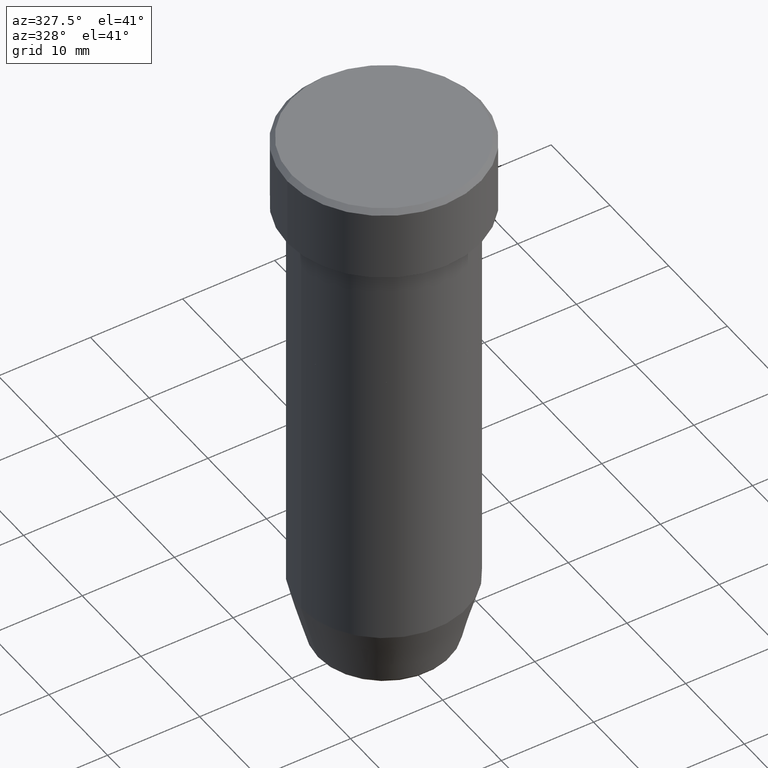
[diagram: clean part render]
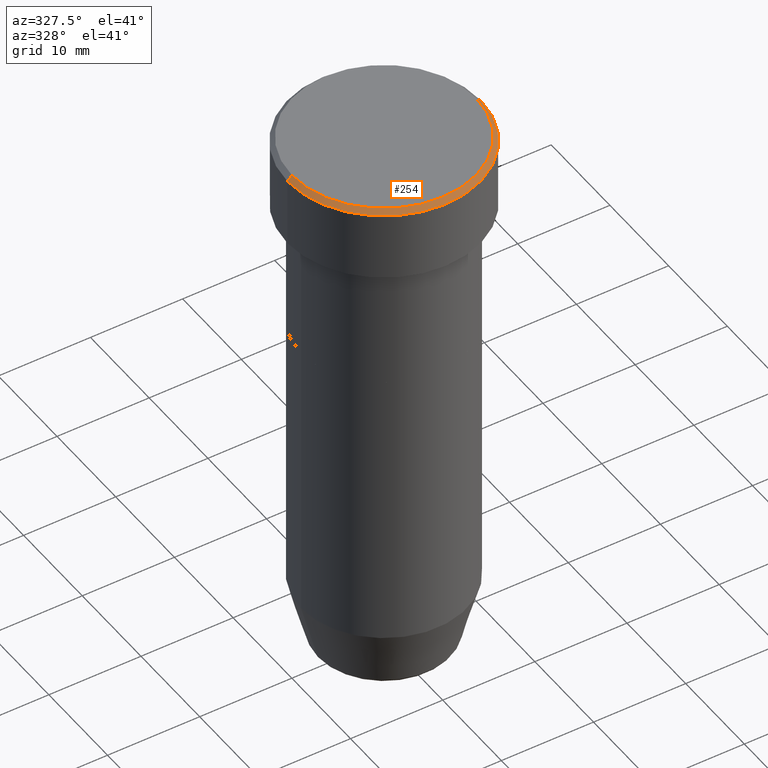
[diagram: same view with one face highlighted and labeled with its STEP entity id]
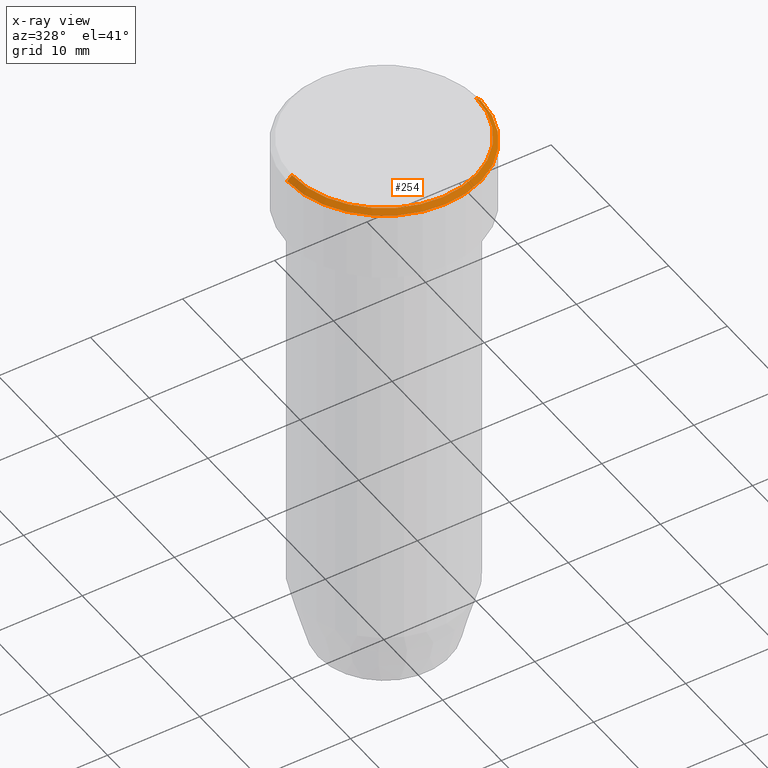
[diagram: x-ray of the same camera — body ghosted, the highlighted face saturated]
A machine part, auxiliary view. The second image highlights one B-rep face of the part: STEP entity #254.
The next image is the same camera in x-ray: the body ghosted, the highlighted face saturated — about 0% of this face is hidden behind the body in this view.
In plain terms, the highlighted conical surface has half-angle 45 deg.
Its self-contained STEP definition (entity closure, byte-faithful):
#8 = VECTOR ( 'NONE', #532, 1000.000000000000000 ) ;
#11 = CARTESIAN_POINT ( 'NONE',  ( -10.50000000000000000, 1.285879139104720831E-15, -0.5000000000000023315 ) ) ;
#50 = CARTESIAN_POINT ( 'NONE',  ( 0.000000000000000000, 0.000000000000000000, -0.5000000000000023315 ) ) ;
#52 = DIRECTION ( 'NONE',  ( 1.000000000000000000, 0.000000000000000000, 0.000000000000000000 ) ) ;
#68 = VECTOR ( 'NONE', #180, 1000.000000000000000 ) ;
#90 = DIRECTION ( 'NONE',  ( -1.000000000000000000, 0.000000000000000000, 0.000000000000000000 ) ) ;
#100 = LINE ( 'NONE', #475, #8 ) ;
#116 = ORIENTED_EDGE ( 'NONE', *, *, #588, .F. ) ;
#141 = DIRECTION ( 'NONE',  ( -0.000000000000000000, -0.000000000000000000, 1.000000000000000000 ) ) ;
#143 = VERTEX_POINT ( 'NONE', #316 ) ;
#145 = CARTESIAN_POINT ( 'NONE',  ( 0.000000000000000000, 0.000000000000000000, 0.000000000000000000 ) ) ;
#149 = AXIS2_PLACEMENT_3D ( 'NONE', #145, #141, #229 ) ;
#180 = DIRECTION ( 'NONE',  ( 0.7071067811865450192, 8.659560562354902043E-17, -0.7071067811865500152 ) ) ;
#187 = ORIENTED_EDGE ( 'NONE', *, *, #511, .F. ) ;
#196 = EDGE_LOOP ( 'NONE', ( #187, #513, #238, #116 ) ) ;
#206 = DIRECTION ( 'NONE',  ( 0.000000000000000000, 0.000000000000000000, -1.000000000000000000 ) ) ;
#220 = VERTEX_POINT ( 'NONE', #599 ) ;
#229 = DIRECTION ( 'NONE',  ( 1.000000000000000000, 0.000000000000000000, 0.000000000000000000 ) ) ;
#238 = ORIENTED_EDGE ( 'NONE', *, *, #542, .T. ) ;
#254 = ADVANCED_FACE ( 'NONE', ( #378 ), #427, .T. ) ;
#257 = AXIS2_PLACEMENT_3D ( 'NONE', #338, #512, #90 ) ;
#275 = VERTEX_POINT ( 'NONE', #472 ) ;
#316 = CARTESIAN_POINT ( 'NONE',  ( 10.50000000000000000, 0.000000000000000000, -0.5000000000000023315 ) ) ;
#317 = AXIS2_PLACEMENT_3D ( 'NONE', #50, #206, #52 ) ;
#334 = CIRCLE ( 'NONE', #149, 10.00000000000000178 ) ;
#338 = CARTESIAN_POINT ( 'NONE',  ( 0.000000000000000000, 0.000000000000000000, 0.000000000000000000 ) ) ;
#371 = CIRCLE ( 'NONE', #317, 10.50000000000000000 ) ;
#378 = FACE_OUTER_BOUND ( 'NONE', #196, .T. ) ;
#427 = CONICAL_SURFACE ( 'NONE', #257, 10.00000000000000178, 0.7853981633974447263 ) ;
#466 = VERTEX_POINT ( 'NONE', #11 ) ;
#467 = LINE ( 'NONE', #598, #68 ) ;
#472 = CARTESIAN_POINT ( 'NONE',  ( 10.00000000000000178, 1.255262969126037241E-15, 0.000000000000000000 ) ) ;
#475 = CARTESIAN_POINT ( 'NONE',  ( -10.00000000000000178, 0.000000000000000000, 0.000000000000000000 ) ) ;
#494 = EDGE_CURVE ( 'NONE', #220, #275, #334, .T. ) ;
#511 = EDGE_CURVE ( 'NONE', #275, #143, #467, .T. ) ;
#512 = DIRECTION ( 'NONE',  ( 0.000000000000000000, 0.000000000000000000, -1.000000000000000000 ) ) ;
#513 = ORIENTED_EDGE ( 'NONE', *, *, #494, .F. ) ;
#532 = DIRECTION ( 'NONE',  ( -0.7071067811865450192, 0.000000000000000000, -0.7071067811865500152 ) ) ;
#542 = EDGE_CURVE ( 'NONE', #220, #466, #100, .T. ) ;
#588 = EDGE_CURVE ( 'NONE', #143, #466, #371, .T. ) ;
#598 = CARTESIAN_POINT ( 'NONE',  ( 10.00000000000000178, 1.224646799147353454E-15, 0.000000000000000000 ) ) ;
#599 = CARTESIAN_POINT ( 'NONE',  ( -10.00000000000000178, 0.000000000000000000, 0.000000000000000000 ) ) ;